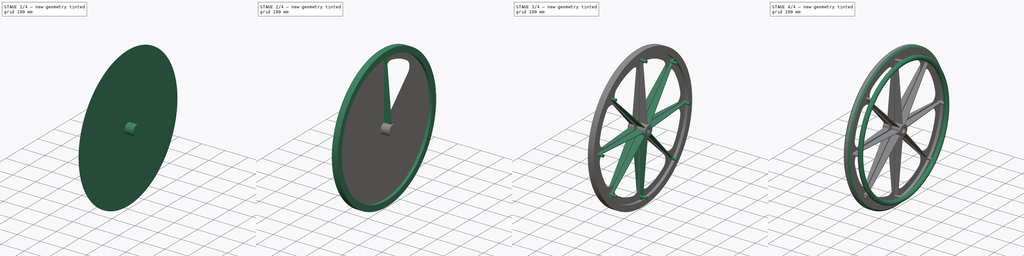
[diagram: build sequence overview — one tinted view per stage of 4, left to right]
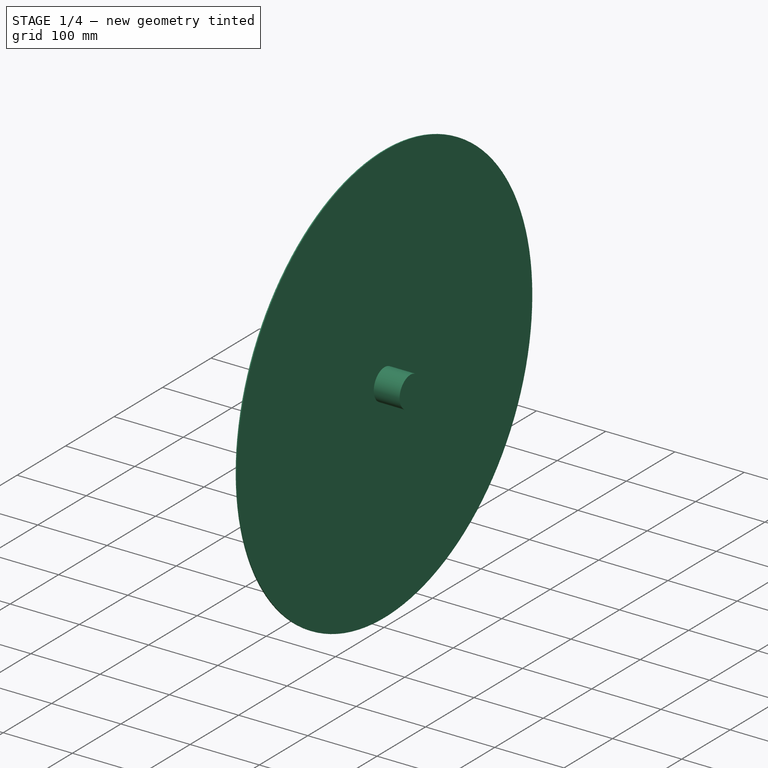
[diagram: stage 1 of 4 — iso view after this stage's code; geometry added in this stage tinted green]
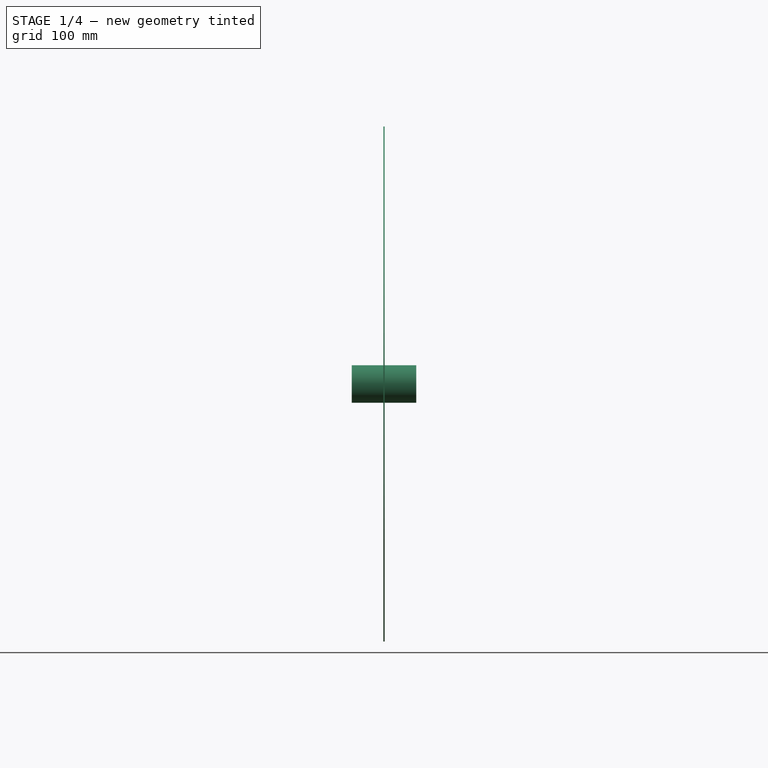
[diagram: stage 1 of 4 — front view after this stage's code; geometry added in this stage tinted green]
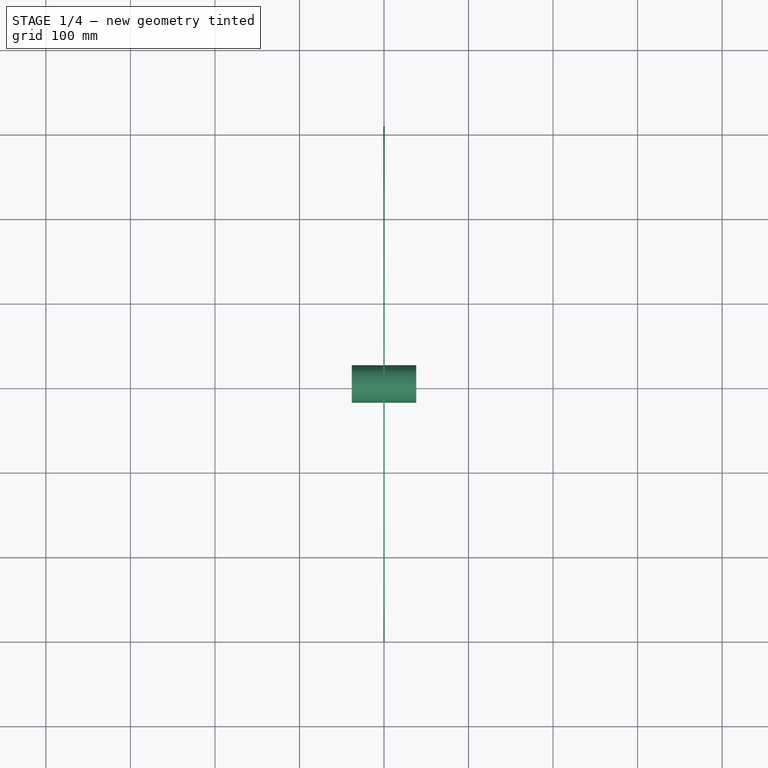
[diagram: stage 1 of 4 — top view after this stage's code; geometry added in this stage tinted green]
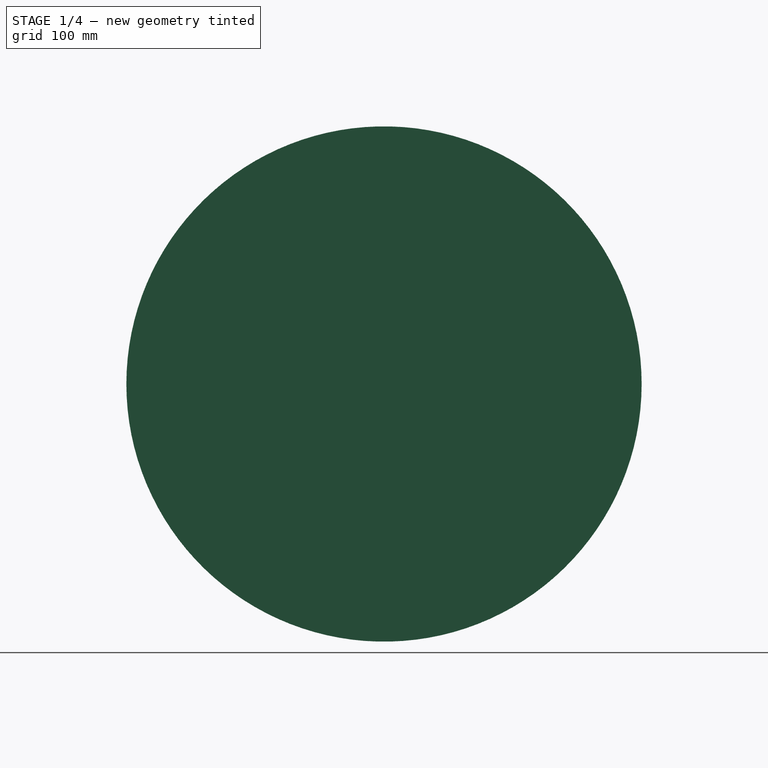
[diagram: stage 1 of 4 — right view after this stage's code; geometry added in this stage tinted green]
FCSTD DOCUMENT  (FreeCAD 0.21R33345 (Git))
Label: Rear wheel
License: All rights reserved
LicenseURL: http://en.wikipedia.org/wiki/All_rights_reserved
objects: Sketcher::SketchObject×9, PartDesign::Pad×4, PartDesign::Pocket×2, PartDesign::Plane×1, PartDesign::AdditiveLoft×1, PartDesign::PolarPattern×1, PartDesign::Revolution×1, PartDesign::Chamfer×1, PartDesign::Body×1
note: 30 computed .brp shape members not serialized (recipe doc carries the construction recipe); baked Part::Feature solids carry a one-line shape summary decoded from their .brp

FEATURE [Sketcher::SketchObject] Sketch
  FullyConstrained = true
  MapMode = 5
  Placement = pos=(0,0,0) rot=(0.57735,0.57735,0.57735;2.0944rad)
  Support = -> [YZ_Plane]
  sketch-geometry (1):
    g0: Circle CenterX=0 CenterY=0 CenterZ=0 NormalX=0 NormalY=0 NormalZ=1 AngleXU=0 Radius=22.225
  constraints (2):
    c: Coincident(g0,g-1)
    c: Diameter(g0) = 44.45
FEATURE [PartDesign::Pad] Pad
  Direction = (1,-2e-16,3e-16)
  Length = 76.2
  Length2 = 10
  Midplane = true
  Placement = pos=(0,0,0) rot=(0.57735,0.57735,0.57735;2.0944rad)
  Profile = -> Sketch
  ReferenceAxis = -> Sketch [N_Axis]
  Refine = true
  Type = 0
FEATURE [Sketcher::SketchObject] Sketch001
  FullyConstrained = true
  MapMode = 5
  Placement = pos=(0,0,0) rot=(0.57735,0.57735,0.57735;2.0944rad)
  Support = -> [YZ_Plane]
  sketch-geometry (1):
    g0: Circle CenterX=0 CenterY=0 CenterZ=0 NormalX=0 NormalY=0 NormalZ=1 AngleXU=0 Radius=304.8
  constraints (2):
    c: Coincident(g0,g-1)
    c: Diameter(g0) = 609.6
FEATURE [PartDesign::Pad] Pad001
  BaseFeature = -> Pad
  Direction = (1,-2e-16,3e-16)
  Length = 1.524
  Length2 = 10
  Midplane = true
  Placement = pos=(0,0,0) rot=(0.57735,0.57735,0.57735;2.0944rad)
  Profile = -> Sketch001
  ReferenceAxis = -> Sketch001 [N_Axis]
  Refine = true
  Type = 0
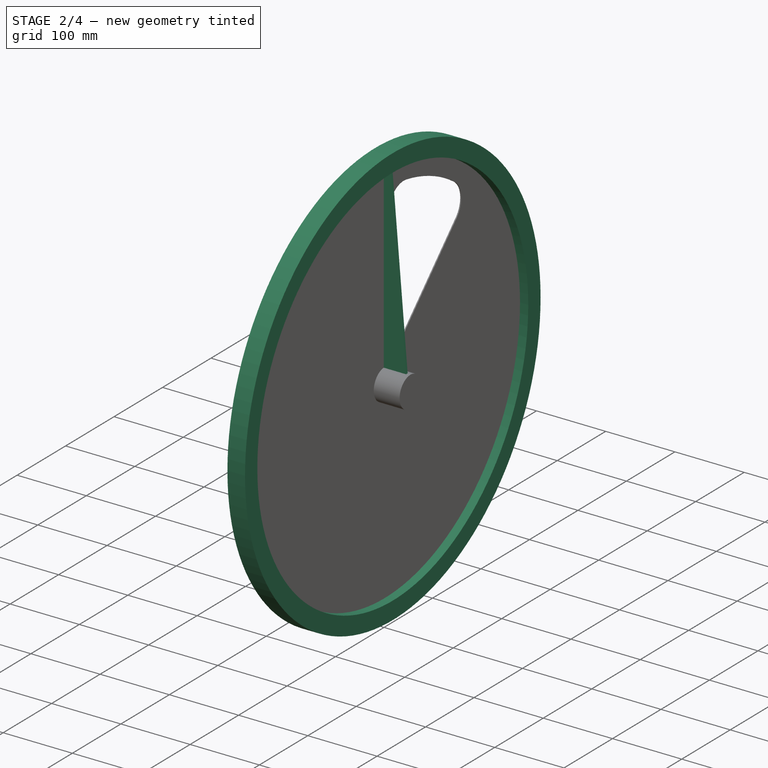
[diagram: stage 2 of 4 — iso view after this stage's code; geometry added in this stage tinted green]
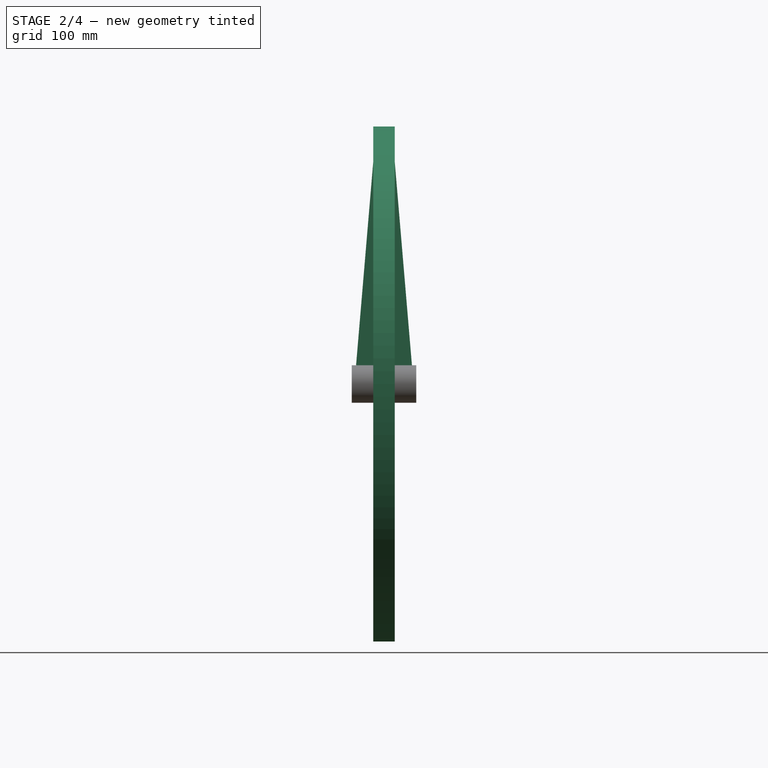
[diagram: stage 2 of 4 — front view after this stage's code; geometry added in this stage tinted green]
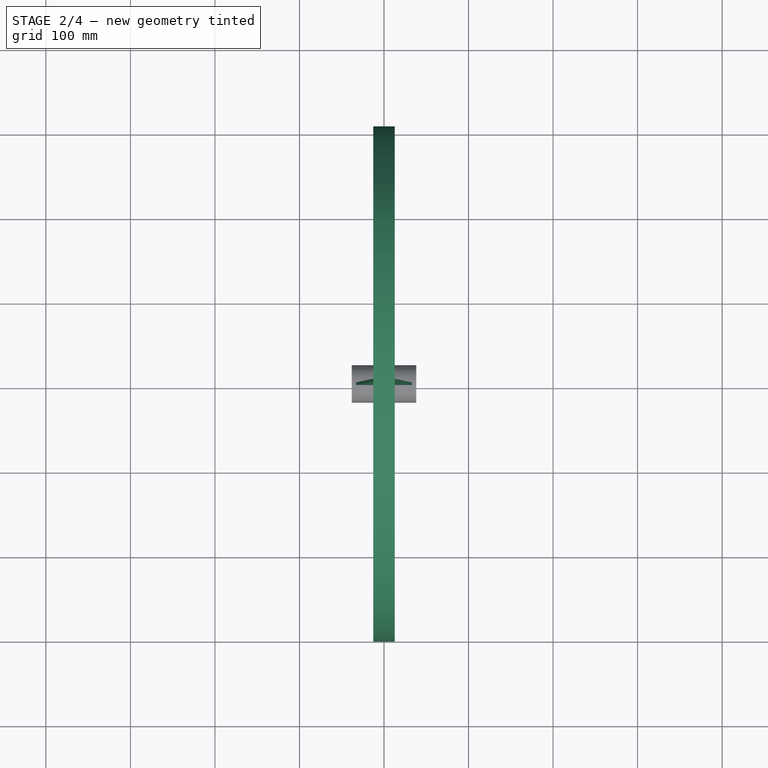
[diagram: stage 2 of 4 — top view after this stage's code; geometry added in this stage tinted green]
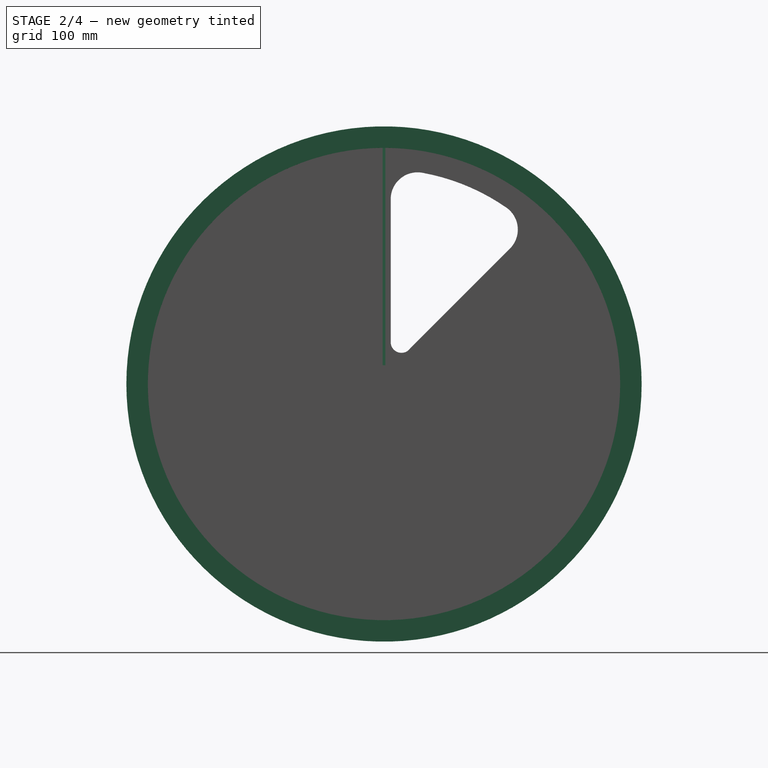
[diagram: stage 2 of 4 — right view after this stage's code; geometry added in this stage tinted green]
FEATURE [Sketcher::SketchObject] Sketch002
  ExternalGeometry = -> [Pad001]
  FullyConstrained = true
  MapMode = 5
  Placement = pos=(0,0,0) rot=(0.57735,0.57735,0.57735;2.0944rad)
  Support = -> [YZ_Plane]
  sketch-geometry (2):
    g0: Circle CenterX=2e-16 CenterY=-1e-16 CenterZ=0 NormalX=0 NormalY=0 NormalZ=1 AngleXU=0 Radius=304.8
    g1: Circle CenterX=2e-16 CenterY=-1e-16 CenterZ=0 NormalX=0 NormalY=0 NormalZ=1 AngleXU=0 Radius=279.4
  constraints (4):
    c: Coincident(g0,g-3)
    c: Tangent(g0,g-3)
    c: Coincident(g1,g0)
    c: Distance(g1,g0) = 25.4
FEATURE [PartDesign::Pad] Pad002
  BaseFeature = -> Pad001
  Direction = (1,-2e-16,3e-16)
  Length = 25.4
  Length2 = 10
  Midplane = true
  Placement = pos=(0,0,0) rot=(0.57735,0.57735,0.57735;2.0944rad)
  Profile = -> Sketch002
  ReferenceAxis = -> Sketch002 [N_Axis]
  Refine = true
  Type = 0
FEATURE [Sketcher::SketchObject] Sketch003
  ExternalGeometry = -> [Pad002]
  FullyConstrained = false
  MapMode = 5
  Placement = pos=(0.762,-2e-16,2e-16) rot=(0.57735,0.57735,0.57735;2.0944rad)
  Support = -> [Pad002]
  sketch-geometry (10):
    g0: LineSegment StartX=3.2e-15 StartY=2.1e-15 StartZ=0 EndX=3.2e-15 EndY=304.8 EndZ=0
    g1: LineSegment StartX=3.2e-15 StartY=2.1e-15 StartZ=0 EndX=215.526 EndY=215.526 EndZ=0
    g2: Circle CenterX=3.2e-15 CenterY=2.1e-15 CenterZ=0 NormalX=0 NormalY=0 NormalZ=1 AngleXU=0 Radius=304.8
    g3: LineSegment StartX=7.9375 StartY=218.678 StartZ=0 EndX=7.9375 EndY=49.5827 EndZ=0
    g4: ArcOfCircle CenterX=20.6375 CenterY=49.5827 CenterZ=0 NormalX=0 NormalY=0 NormalZ=1 AngleXU=0 Radius=12.7 StartAngle=3.14159 EndAngle=5.66167
    g5: LineSegment StartX=30.9625 StartY=42.1879 StartZ=0 EndX=149.016 EndY=160.241 EndZ=0
    g6: ArcOfCircle CenterX=126.565 CenterY=182.692 CenterZ=0 NormalX=0 NormalY=0 NormalZ=1 AngleXU=0 Radius=31.75 StartAngle=5.49779 EndAngle=7.24812
    g7: ArcOfCircle CenterX=39.6875 CenterY=218.678 CenterZ=0 NormalX=0 NormalY=0 NormalZ=1 AngleXU=0 Radius=31.75 StartAngle=1.39126 EndAngle=3.14159
    g8: LineSegment StartX=149.016 StartY=160.241 StartZ=0 EndX=154.629 EndY=154.629 EndZ=0
    g9: ArcOfCircle CenterX=3.2e-15 CenterY=2.1e-15 CenterZ=0 NormalX=0 NormalY=0 NormalZ=1 AngleXU=0 Radius=254 StartAngle=0.964933 EndAngle=1.39126
  constraints (25):
    c: PointOnObject(g0,g-3)
    c: Vertical(g0)
    c: PointOnObject(g1,g-3)
    c: Angle(g1,g0) = 0.785398
    c: Tangent(g2,g-3)
    c: Vertical(g3)
    c: Tangent(g3,g4) = -1.5708
    c: Coincident(g4,g5)
    c: Tangent(g5,g6) = -1.5708
    c: Tangent(g3,g7) = -1.5708
    c: Parallel(g5,g1)
    c: Coincident(g8,g5)
    c: PointOnObject(g8,g1)
    c: Perpendicular(g1,g8)
    c: Distance(g8) = 7.9375
    c: DistanceX(g0,g3) = 7.9375
    c: Radius(g4) = 12.7
    c: Radius(g6) = 31.75
    c: Radius(g7) = 31.75
    c: Coincident(g9,g7) = -1.5708
    c: Tangent(g9,g6) = -1.5708
    c: Coincident(g0,g1)
    c: Coincident(g0,g2)
    c: Coincident(g0,g9)
    c: Coincident(g0,g-3)
FEATURE [PartDesign::Pocket] Pocket
  BaseFeature = -> Pad002
  Direction = (-1,9e-16,-6e-16)
  Length = 5
  Length2 = 5
  Placement = pos=(0,0,0) rot=(0.57735,0.57735,0.57735;2.0944rad)
  Profile = -> Sketch003
  ReferenceAxis = -> Sketch003 [N_Axis]
  Refine = true
  Type = 1
FEATURE [PartDesign::Plane] DatumPlane
  AttachmentOffset = pos=(0,0,281.94) rot=(0,0,1;0rad)
  Length = 130.144
  MapMode = 5
  Placement = pos=(0,0,281.94) rot=(0,0,1;0rad)
  ResizeMode = 0
  Support = -> [XY_Plane]
  Width = 655.045
FEATURE [Sketcher::SketchObject] Sketch004
  ExternalGeometry = -> [Pocket]
  FullyConstrained = true
  MapMode = 5
  Support = -> [XY_Plane]
  sketch-geometry (5):
    g0: LineSegment StartX=-34.925 StartY=-1.5875 StartZ=0 EndX=-34.925 EndY=1.5875 EndZ=0
    g1: LineSegment StartX=-34.925 StartY=1.5875 StartZ=0 EndX=34.925 EndY=1.5875 EndZ=0
    g2: LineSegment StartX=34.925 StartY=1.5875 StartZ=0 EndX=34.925 EndY=-1.5875 EndZ=0
    g3: LineSegment StartX=34.925 StartY=-1.5875 StartZ=0 EndX=-34.925 EndY=-1.5875 EndZ=0
    g4: GeomPoint X=0 Y=2e-16 Z=0
  constraints (12):
    c: Coincident(g0,g1)
    c: Coincident(g1,g2)
    c: Coincident(g2,g3)
    c: Coincident(g3,g0)
    c: Horizontal(g1)
    c: Horizontal(g3)
    c: Vertical(g0)
    c: Vertical(g2)
    c: Symmetric(g1,g0,g4)
    c: Coincident(g4,g-1)
    c: DistanceX(g1,g-3) = 3.175
    c: DistanceY(g0,g0) = 3.175
FEATURE [Sketcher::SketchObject] Sketch005
  FullyConstrained = true
  MapMode = 5
  Placement = pos=(0,0,281.94) rot=(0,0,1;0rad)
  Support = -> [DatumPlane]
  sketch-geometry (5):
    g0: LineSegment StartX=-11.1125 StartY=-1.5875 StartZ=0 EndX=-11.1125 EndY=1.5875 EndZ=0
    g1: LineSegment StartX=-11.1125 StartY=1.5875 StartZ=0 EndX=11.1125 EndY=1.5875 EndZ=0
    g2: LineSegment StartX=11.1125 StartY=1.5875 StartZ=0 EndX=11.1125 EndY=-1.5875 EndZ=0
    g3: LineSegment StartX=11.1125 StartY=-1.5875 StartZ=0 EndX=-11.1125 EndY=-1.5875 EndZ=0
    g4: GeomPoint X=0 Y=0 Z=0
  constraints (12):
    c: Coincident(g0,g1)
    c: Coincident(g1,g2)
    c: Coincident(g2,g3)
    c: Coincident(g3,g0)
    c: Horizontal(g1)
    c: Horizontal(g3)
    c: Vertical(g0)
    c: Vertical(g2)
    c: Symmetric(g1,g0,g4)
    c: Coincident(g4,g-1)
    c: DistanceX(g3,g3) = 22.225
    c: DistanceY(g2,g2) = 3.175
FEATURE [PartDesign::AdditiveLoft] AdditiveLoft
  BaseFeature = -> Pocket
  Closed = false
  Placement = pos=(0,0,0) rot=(0.57735,0.57735,0.57735;2.0944rad)
  Profile = -> Sketch004
  Refine = true
  Ruled = false
  Sections = -> [Sketch005]
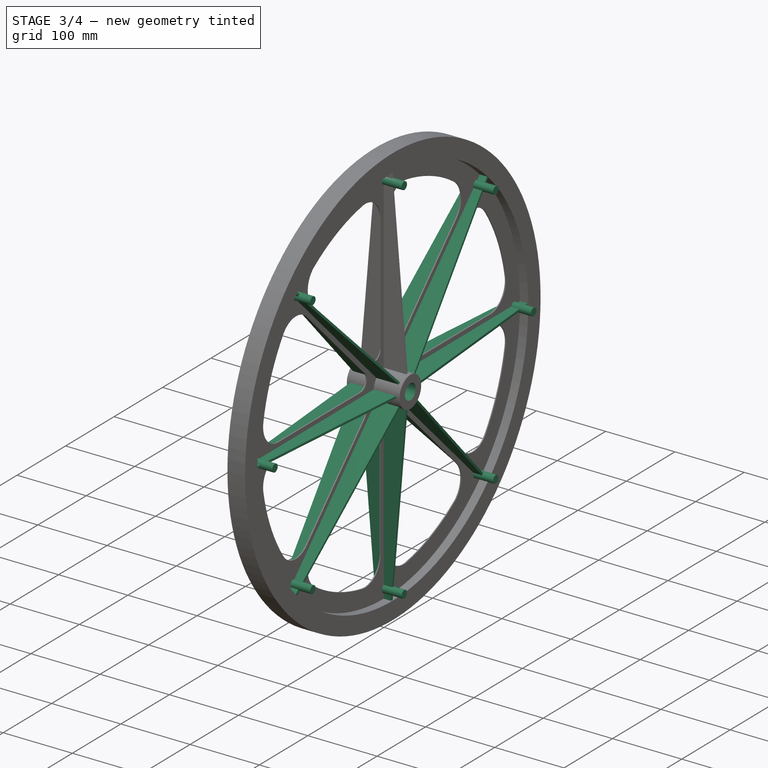
[diagram: stage 3 of 4 — iso view after this stage's code; geometry added in this stage tinted green]
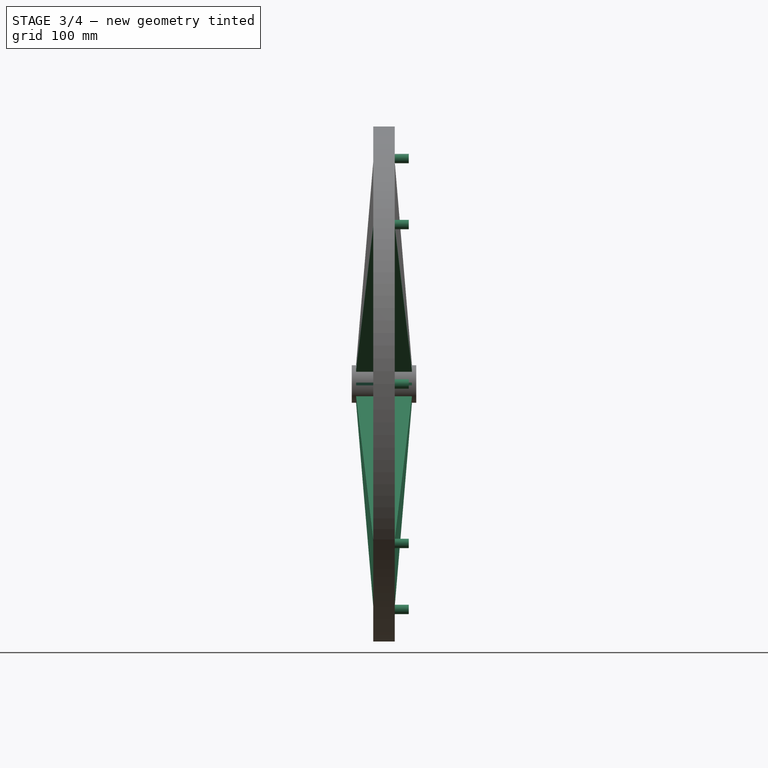
[diagram: stage 3 of 4 — front view after this stage's code; geometry added in this stage tinted green]
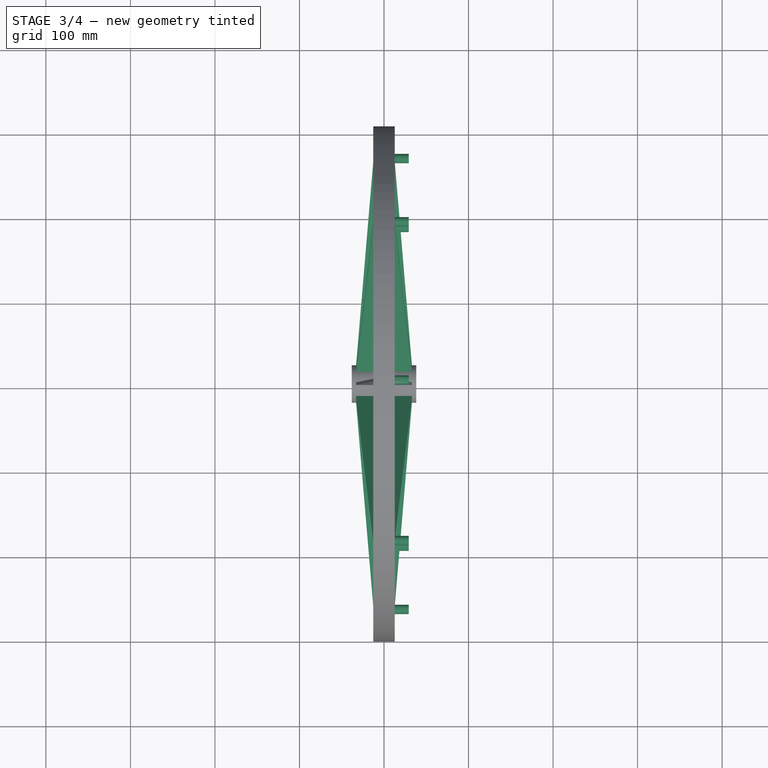
[diagram: stage 3 of 4 — top view after this stage's code; geometry added in this stage tinted green]
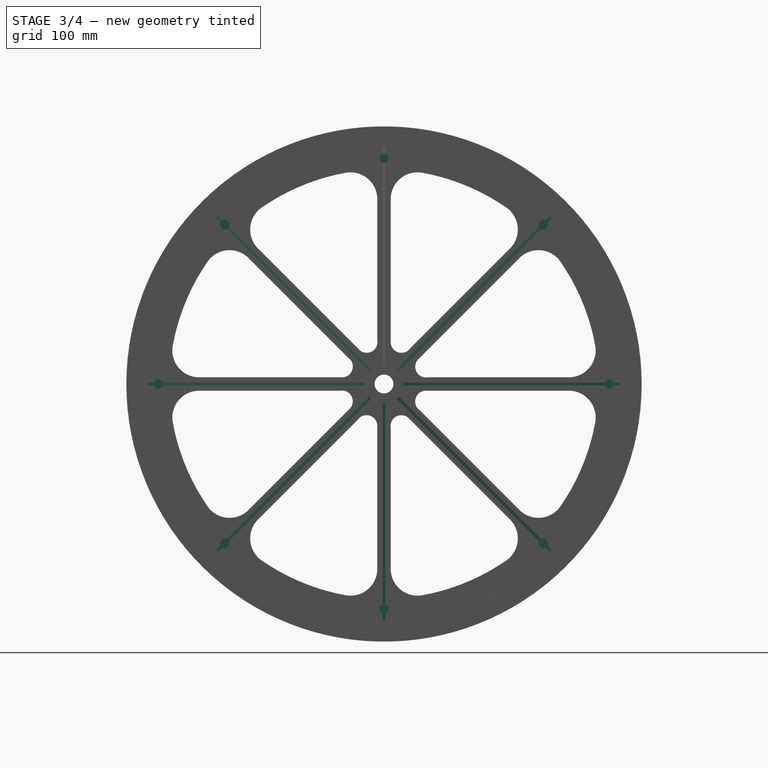
[diagram: stage 3 of 4 — right view after this stage's code; geometry added in this stage tinted green]
FEATURE [Sketcher::SketchObject] Sketch006
  FullyConstrained = false
  MapMode = 5
  Placement = pos=(0.762,-2e-16,2e-16) rot=(0.57735,0.57735,0.57735;2.0944rad)
  Support = -> [AdditiveLoft]
  sketch-geometry (2):
    g0: LineSegment StartX=0 StartY=0 StartZ=0 EndX=0 EndY=330 EndZ=0
    g1: Circle CenterX=0 CenterY=266.7 CenterZ=0 NormalX=0 NormalY=0 NormalZ=1 AngleXU=0 Radius=5.5565
  constraints (5):
    c: Coincident(g0,g-1)
    c: Vertical(g0)
    c: PointOnObject(g1,g0)
    c: Diameter(g1) = 11.113
    c: DistanceY(g0,g1) = 266.7
FEATURE [PartDesign::Pad] Pad003
  BaseFeature = -> AdditiveLoft
  Direction = (1,-1.1e-15,7e-16)
  Length = 28.575
  Length2 = 10
  Placement = pos=(0,0,0) rot=(0.57735,0.57735,0.57735;2.0944rad)
  Profile = -> Sketch006
  ReferenceAxis = -> Sketch006 [N_Axis]
  Refine = true
  Type = 0
FEATURE [PartDesign::PolarPattern] PolarPattern
  Angle = 360
  Axis = -> Sketch006 [N_Axis]
  BaseFeature = -> Pad003
  Occurrences = 8
  Originals = -> [Pad003,AdditiveLoft,Pocket]
  Placement = pos=(0,0,0) rot=(0.57735,0.57735,0.57735;2.0944rad)
  Refine = true
FEATURE [Sketcher::SketchObject] Sketch007
  FullyConstrained = true
  MapMode = 5
  Placement = pos=(-38.1,8.4e-15,-8.4e-15) rot=(0.57735,0.57735,-0.57735;4.18879rad)
  Support = -> [PolarPattern]
  sketch-geometry (1):
    g0: Circle CenterX=0 CenterY=0 CenterZ=0 NormalX=0 NormalY=0 NormalZ=1 AngleXU=0 Radius=11.1125
  constraints (2):
    c: Coincident(g0,g-1)
    c: Diameter(g0) = 22.225
FEATURE [PartDesign::Pocket] Pocket001
  BaseFeature = -> PolarPattern
  Direction = (1,-1.5e-15,9e-16)
  Length = 5
  Length2 = 5
  Placement = pos=(0,0,0) rot=(0.57735,0.57735,0.57735;2.0944rad)
  Profile = -> Sketch007
  ReferenceAxis = -> Sketch007 [N_Axis]
  Refine = true
  Type = 1
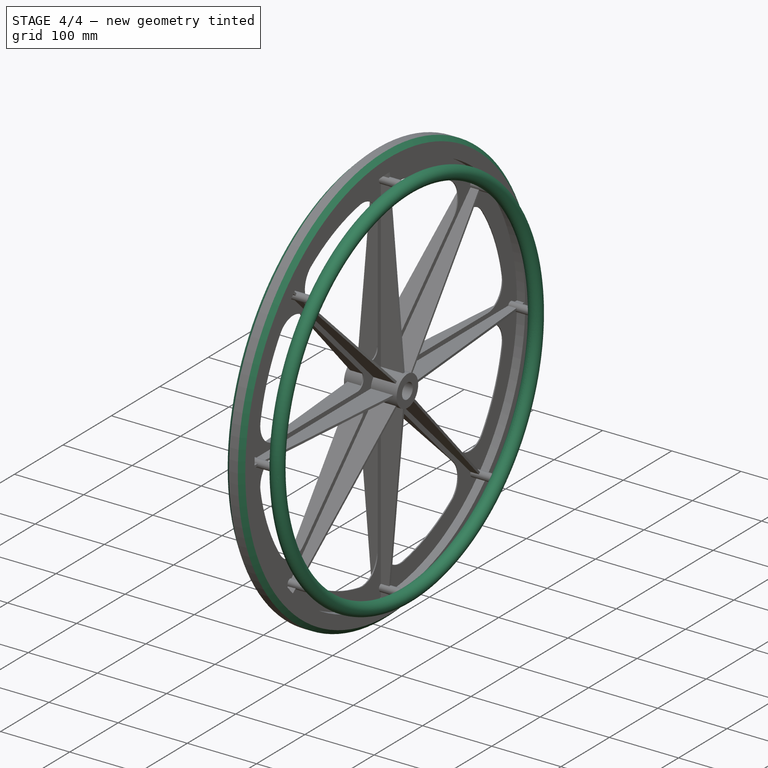
[diagram: stage 4 of 4 — iso view after this stage's code; geometry added in this stage tinted green]
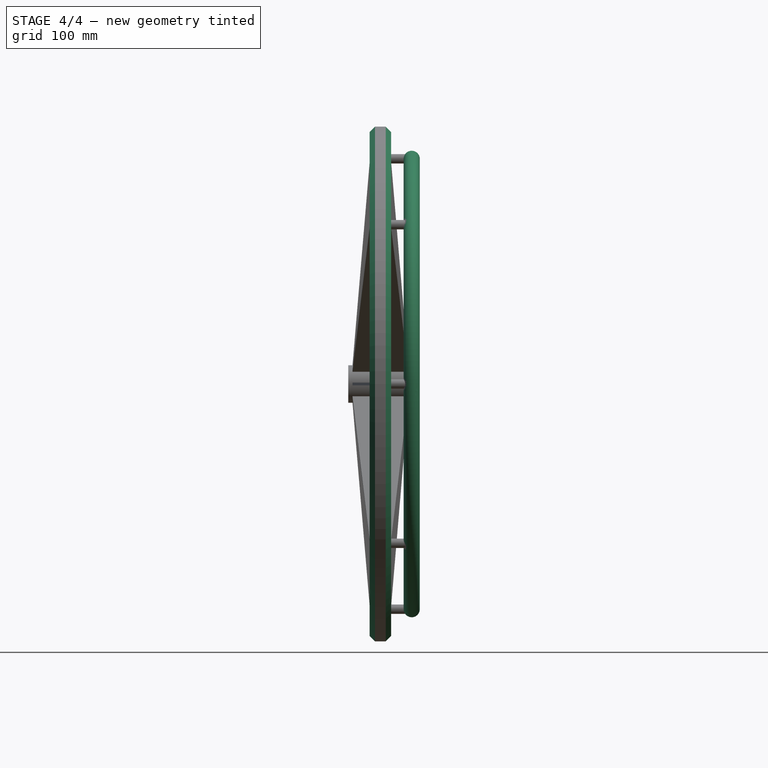
[diagram: stage 4 of 4 — front view after this stage's code; geometry added in this stage tinted green]
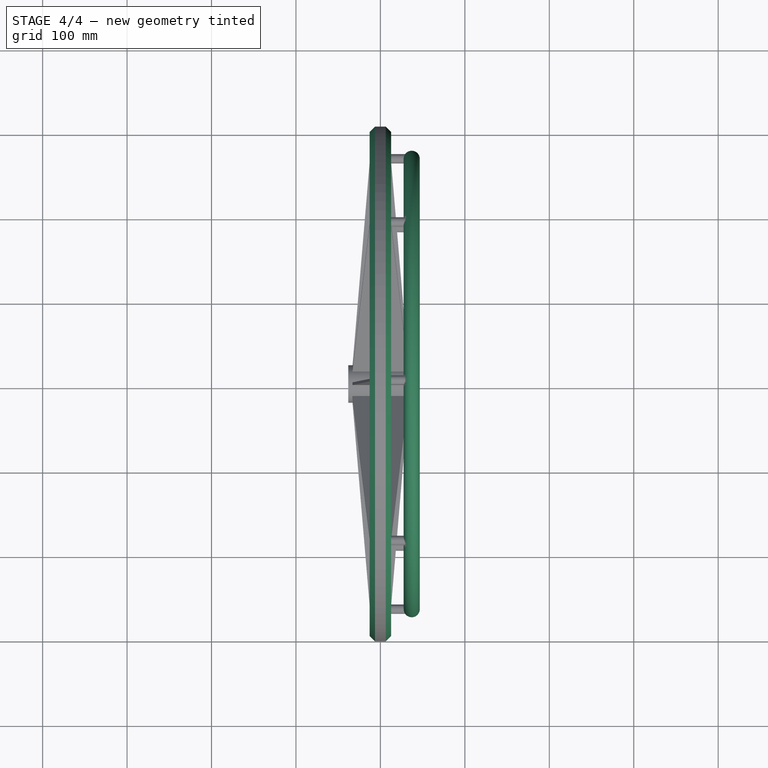
[diagram: stage 4 of 4 — top view after this stage's code; geometry added in this stage tinted green]
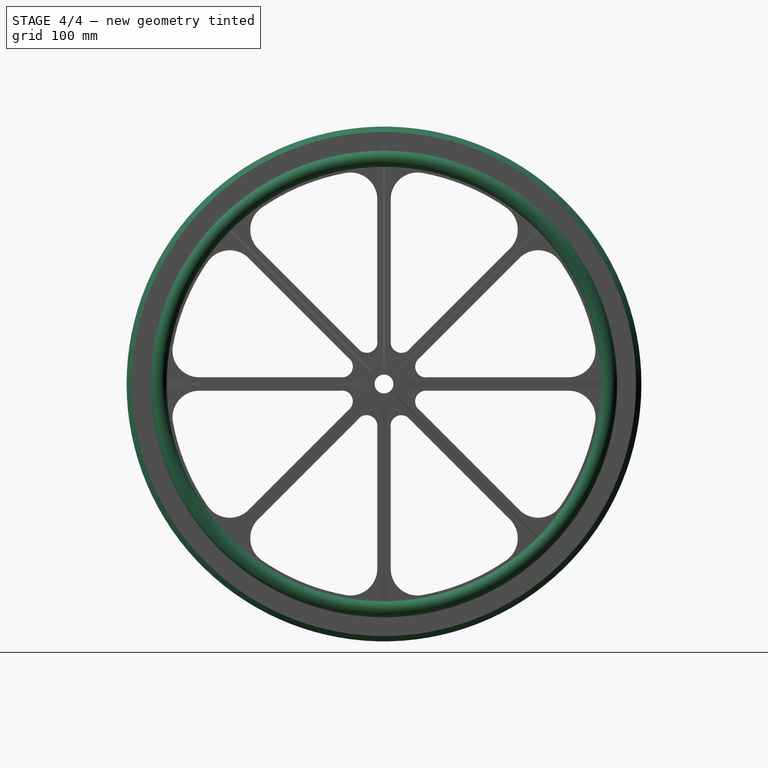
[diagram: stage 4 of 4 — right view after this stage's code; geometry added in this stage tinted green]
FEATURE [Sketcher::SketchObject] Sketch008
  ExternalGeometry = -> [Pocket001]
  FullyConstrained = false
  MapMode = 5
  Support = -> [XY_Plane]
  sketch-geometry (3):
    g0: LineSegment StartX=29.337 StartY=266.7 StartZ=0 EndX=-10 EndY=266.7 EndZ=0
    g1: LineSegment StartX=29.337 StartY=272.257 StartZ=0 EndX=29.337 EndY=240 EndZ=0
    g2: Circle CenterX=37.0733 CenterY=266.7 CenterZ=0 NormalX=0 NormalY=0 NormalZ=1 AngleXU=0 Radius=9.525
  constraints (7):
    c: Coincident(g0,g-4)
    c: Horizontal(g0)
    c: Coincident(g1,g-3)
    c: Vertical(g1)
    c: Horizontal(g0,g2)
    c: Diameter(g2) = 19.05
    c: PointOnObject(g1,g2)
FEATURE [PartDesign::Revolution] Revolution
  Angle = 360
  Axis = (1,0,0)
  Base = (0,0,0)
  BaseFeature = -> Pocket001
  Placement = pos=(0,0,0) rot=(0.57735,0.57735,0.57735;2.0944rad)
  Profile = -> Sketch008
  ReferenceAxis = -> X_Axis
  Refine = true
FEATURE [PartDesign::Chamfer] Chamfer
  Angle = 45
  Base = -> Revolution [Edge251,Edge152]
  BaseFeature = -> Revolution
  ChamferType = 0
  FlipDirection = false
  Placement = pos=(0,0,0) rot=(0.57735,0.57735,0.57735;2.0944rad)
  Refine = true
  Size = 6.35
  Size2 = 1
  SupportTransform = false
  UseAllEdges = false
FEATURE [PartDesign::Body] Body
  Group = -> [Sketch,Pad,Sketch001,Pad001,Sketch002,Pad002,Sketch003,Pocket,DatumPlane,Sketch004,Sketch005,AdditiveLoft,Sketch006,Pad003,PolarPattern,Sketch007,Pocket001,Sketch008,Revolution,Chamfer]
  Origin = -> Origin
  Tip = -> Chamfer
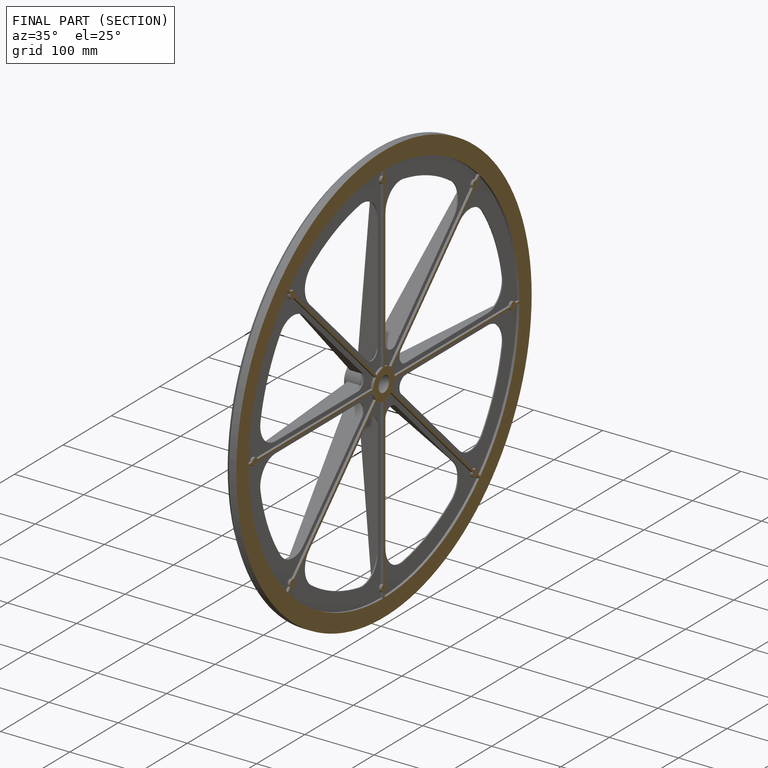
[diagram: finished part — half-section view (interior)]
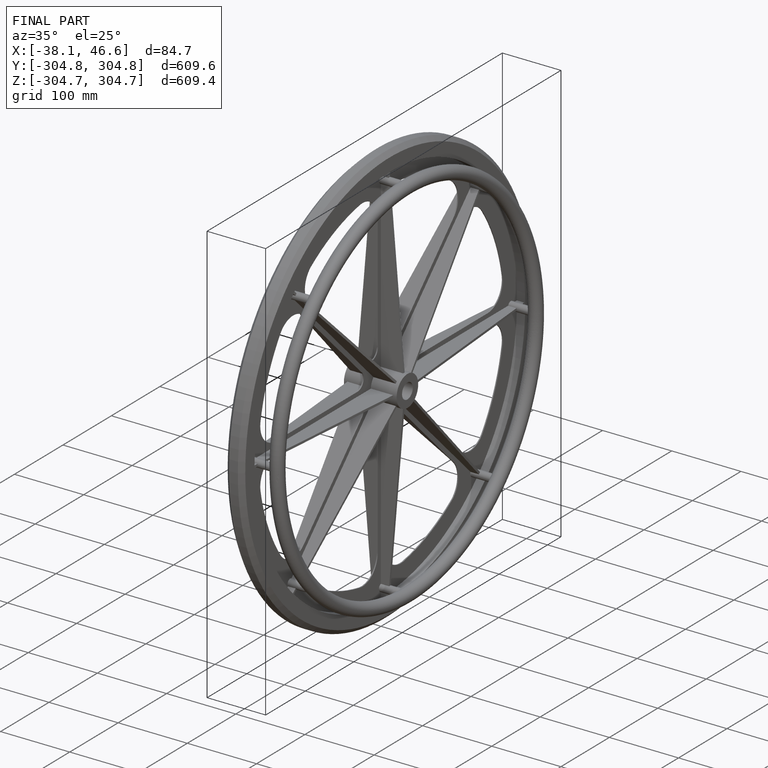
[diagram: finished part — iso view with bounding-box wireframe]
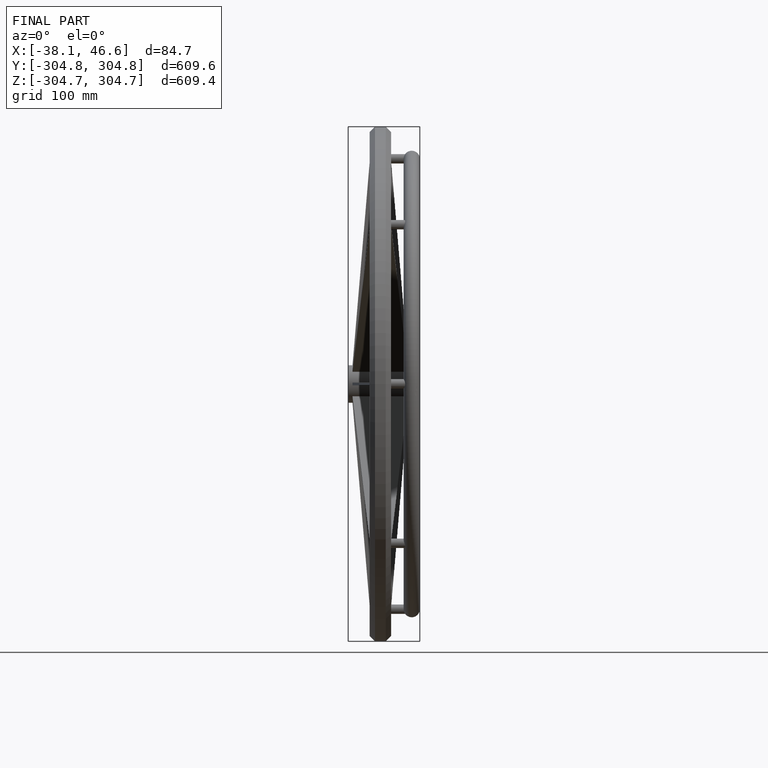
[diagram: finished part — front view with bounding-box wireframe]
